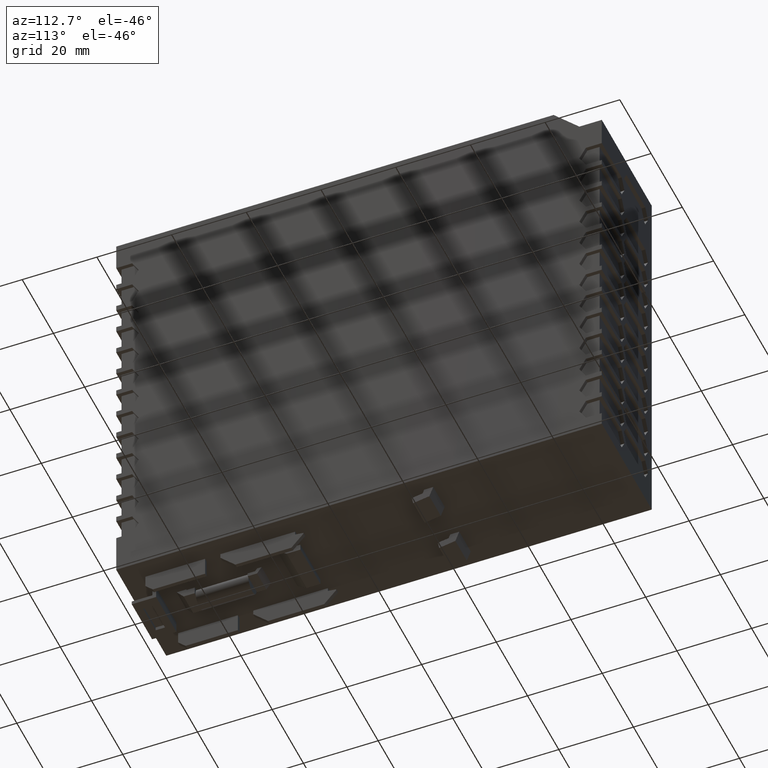
[diagram: clean part render]
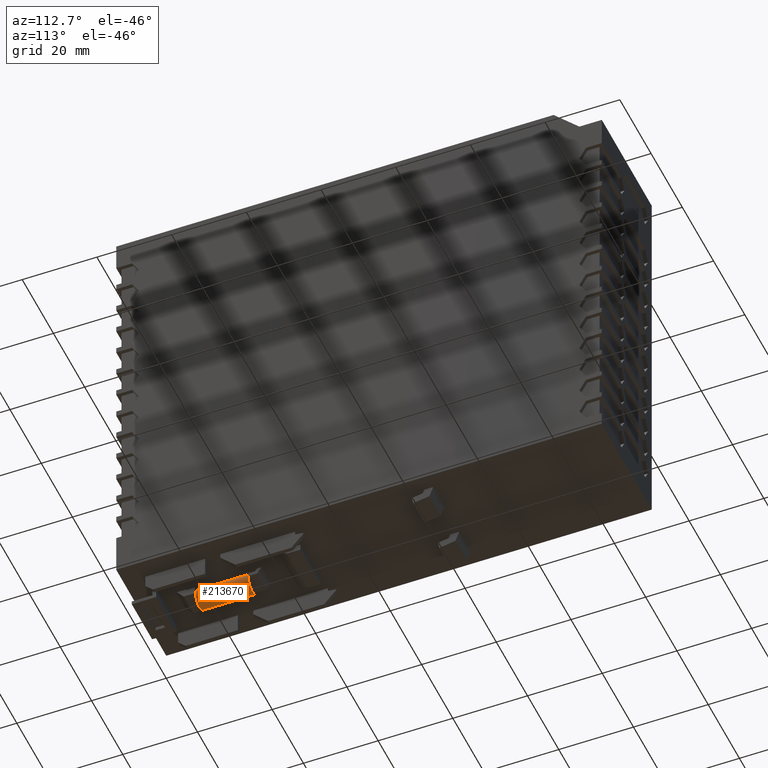
[diagram: same view with one face highlighted and labeled with its STEP entity id]
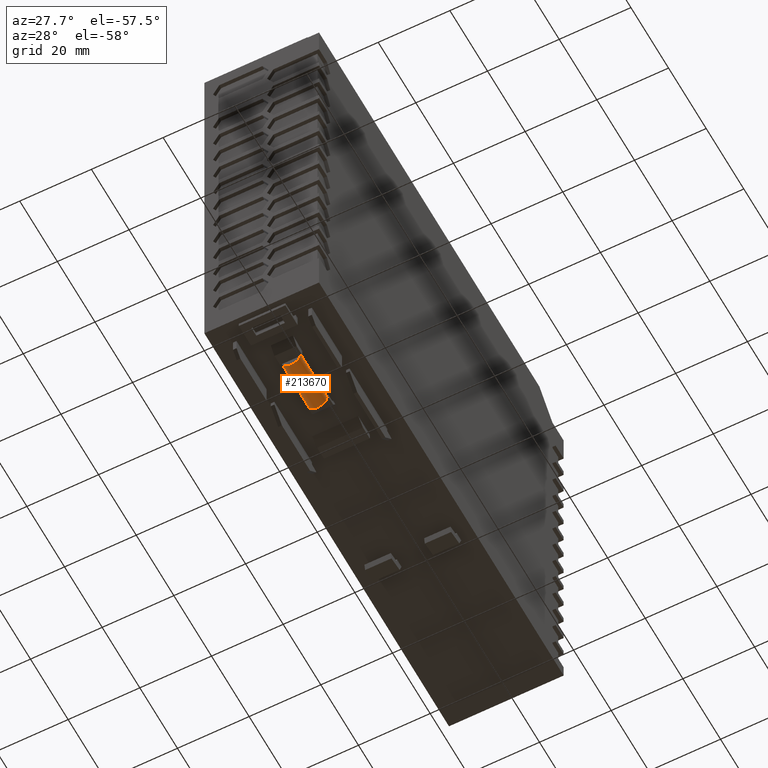
[diagram: same view with one face highlighted and labeled with its STEP entity id]
A machine part, auxiliary view. The second image highlights one B-rep face of the part: STEP entity #213670.
A second angle (auxiliary view) of the same face is appended — the face is thin or edge-on in the first view.
In plain terms, the highlighted cylindrical surface (edge-blend (fillet) strip) has radius 2.6 mm, axis along (0, -1, 0).
Its self-contained STEP definition (entity closure, byte-faithful):
#12100=CARTESIAN_POINT('',(14.1024895387131,-35.24067820281,
-113.527604780797));
#12110=VERTEX_POINT('',#12100);
#12120=CARTESIAN_POINT('',(17.8975104612869,-35.24067820281,
-113.527604780797));
#12130=VERTEX_POINT('',#12120);
#12160=CARTESIAN_POINT('',(17.8975104612869,-49.37067820281,
-113.527604780797));
#12170=DIRECTION('',(0.,-1.,0.));
#12180=VECTOR('',#12170,1.);
#12190=LINE('',#12160,#12180);
#12200=CARTESIAN_POINT('',(17.8975104612869,-49.37067820281,
-113.527604780797));
#12210=VERTEX_POINT('',#12200);
#12220=EDGE_CURVE('',#12130,#12210,#12190,.T.);
#12280=CARTESIAN_POINT('',(14.1024895387131,-49.37067820281,
-113.527604780797));
#12290=VERTEX_POINT('',#12280);
#12320=CARTESIAN_POINT('',(14.1024895387131,-49.37067820281,
-113.527604780797));
#12330=DIRECTION('',(0.,-1.,0.));
#12340=VECTOR('',#12330,1.);
#12350=LINE('',#12320,#12340);
#12360=EDGE_CURVE('',#12110,#12290,#12350,.T.);
#213110=CARTESIAN_POINT('',(16.,-49.37067820281,-115.305090096997));
#213120=DIRECTION('',(0.,-1.,0.));
#213130=DIRECTION('',(0.,0.,1.));
#213140=AXIS2_PLACEMENT_3D('',#213110,#213120,#213130);
#213150=CIRCLE('',#213140,2.6);
#213160=EDGE_CURVE('',#12290,#12210,#213150,.T.);
#213290=CARTESIAN_POINT('',(16.,-49.37067820281,-115.305090096997));
#213300=DIRECTION('',(0.,-1.,0.));
#213310=DIRECTION('',(0.,0.,1.));
#213320=AXIS2_PLACEMENT_3D('',#213290,#213300,#213310);
#213330=CYLINDRICAL_SURFACE('',#213320,2.6);
#213340=CARTESIAN_POINT('',(16.,-35.24067820281,-115.305090096997));
#213350=DIRECTION('',(0.,-1.,0.));
#213360=DIRECTION('',(0.,0.,1.));
#213370=AXIS2_PLACEMENT_3D('',#213340,#213350,#213360);
#213380=CIRCLE('',#213370,2.6);
#213390=CARTESIAN_POINT('',(18.4000000000208,-35.24067820281,
-114.305090097047));
#213400=VERTEX_POINT('',#213390);
#213410=EDGE_CURVE('',#213400,#12130,#213380,.T.);
#213420=ORIENTED_EDGE('',*,*,#213410,.T.);
#213430=CARTESIAN_POINT('',(16.,-35.24067820281,-115.305090096997));
#213440=DIRECTION('',(0.,-1.,0.));
#213450=DIRECTION('',(0.,0.,1.));
#213460=AXIS2_PLACEMENT_3D('',#213430,#213440,#213450);
#213470=CIRCLE('',#213460,2.6);
#213480=CARTESIAN_POINT('',(18.6,-35.24067820281,-115.305090097047));
#213490=VERTEX_POINT('',#213480);
#213500=EDGE_CURVE('',#213490,#213400,#213470,.T.);
#213510=ORIENTED_EDGE('',*,*,#213500,.T.);
#213520=CARTESIAN_POINT('',(13.4,-35.24067820281,-115.305090097047));
#213530=VERTEX_POINT('',#213520);
#213540=EDGE_CURVE('',#213530,#213490,#213380,.T.);
#213550=ORIENTED_EDGE('',*,*,#213540,.T.);
#213560=CARTESIAN_POINT('',(13.5999999999792,-35.24067820281,
-114.305090097047));
#213570=VERTEX_POINT('',#213560);
#213580=EDGE_CURVE('',#213570,#213530,#213470,.T.);
#213590=ORIENTED_EDGE('',*,*,#213580,.T.);
#213600=EDGE_CURVE('',#12110,#213570,#213380,.T.);
#213610=ORIENTED_EDGE('',*,*,#213600,.T.);
#213620=ORIENTED_EDGE('',*,*,#12360,.F.);
#213630=ORIENTED_EDGE('',*,*,#213160,.F.);
#213640=ORIENTED_EDGE('',*,*,#12220,.T.);
#213650=EDGE_LOOP('',(#213640,#213630,#213620,#213610,#213590,#213550,
#213510,#213420));
#213660=FACE_OUTER_BOUND('',#213650,.T.);
#213670=ADVANCED_FACE('',(#213660),#213330,.T.);